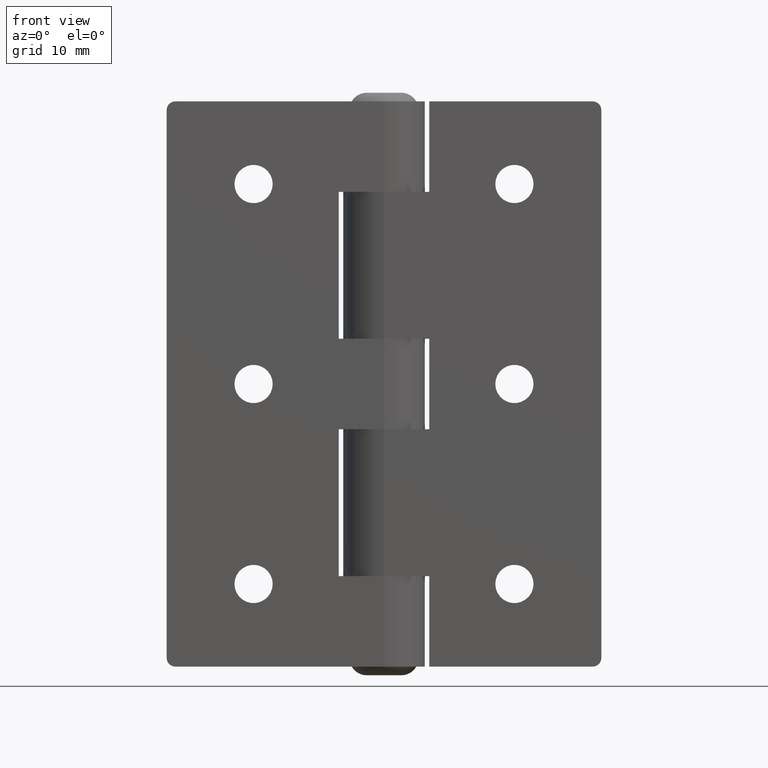
[diagram: clean part render]
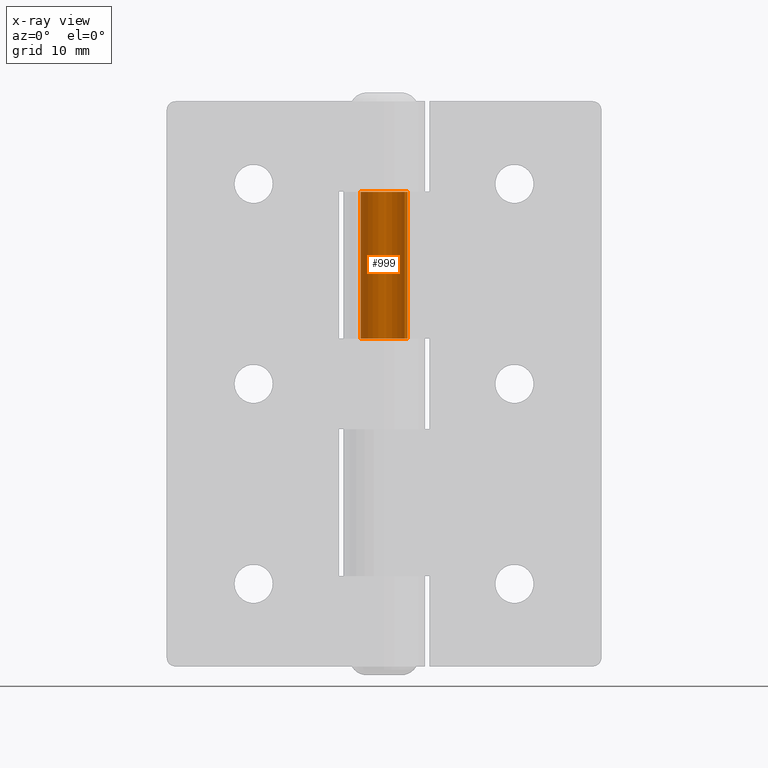
[diagram: x-ray — body ghosted, one internal face saturated and labeled with its STEP entity id]
A machine part, front view, then the same camera in x-ray: the body is ghosted and one INTERNAL B-rep face — a face not visible from any outside direction — is saturated and labeled: STEP entity #999.
In plain terms, the highlighted cylindrical surface (edge-blend (fillet) strip) has radius 2.7 mm, axis along (0, 0, -1).
Its self-contained STEP definition (entity closure, byte-faithful):
#137=FACE_OUTER_BOUND('',#215,.T.);
#215=EDGE_LOOP('',(#911,#912,#913,#914));
#287=LINE('',#1633,#373);
#303=LINE('',#1687,#389);
#373=VECTOR('',#1328,16.9);
#389=VECTOR('',#1394,16.9);
#432=CIRCLE('',#1093,2.7);
#436=CIRCLE('',#1100,2.7);
#516=VERTEX_POINT('',#1630);
#517=VERTEX_POINT('',#1632);
#526=VERTEX_POINT('',#1662);
#530=VERTEX_POINT('',#1677);
#634=EDGE_CURVE('',#517,#516,#287,.T.);
#648=EDGE_CURVE('',#526,#517,#432,.T.);
#657=EDGE_CURVE('',#516,#530,#436,.T.);
#661=EDGE_CURVE('',#526,#530,#303,.T.);
#911=ORIENTED_EDGE('',*,*,#648,.T.);
#912=ORIENTED_EDGE('',*,*,#634,.T.);
#913=ORIENTED_EDGE('',*,*,#657,.T.);
#914=ORIENTED_EDGE('',*,*,#661,.F.);
#946=CYLINDRICAL_SURFACE('',#1105,2.7);
#999=ADVANCED_FACE('',(#137),#946,.F.);
#1093=AXIS2_PLACEMENT_3D('',#1663,#1362,#1363);
#1100=AXIS2_PLACEMENT_3D('',#1679,#1381,#1382);
#1105=AXIS2_PLACEMENT_3D('',#1688,#1395,#1396);
#1328=DIRECTION('',(0.,0.,1.));
#1362=DIRECTION('center_axis',(0.,0.,-1.));
#1363=DIRECTION('ref_axis',(0.,1.,0.));
#1381=DIRECTION('center_axis',(0.,0.,1.));
#1382=DIRECTION('ref_axis',(0.,1.,0.));
#1394=DIRECTION('',(0.,0.,1.));
#1395=DIRECTION('center_axis',(0.,0.,1.));
#1396=DIRECTION('ref_axis',(0.,1.,0.));
#1630=CARTESIAN_POINT('',(-3.67394039744207E-16,2.,-5.2));
#1632=CARTESIAN_POINT('',(-3.67394039744207E-16,2.,-22.1));
#1633=CARTESIAN_POINT('',(-3.67394039744207E-16,2.,0.));
#1662=CARTESIAN_POINT('',(-2.33826859021798,3.35,-22.1));
#1663=CARTESIAN_POINT('Origin',(-3.67394039744207E-16,4.7,-22.1));
#1677=CARTESIAN_POINT('',(-2.33826859021798,3.35,-5.2));
#1679=CARTESIAN_POINT('Origin',(-3.67394039744207E-16,4.7,-5.2));
#1687=CARTESIAN_POINT('',(-2.33826859021798,3.35,0.));
#1688=CARTESIAN_POINT('Origin',(-3.67394039744207E-16,4.7,0.));